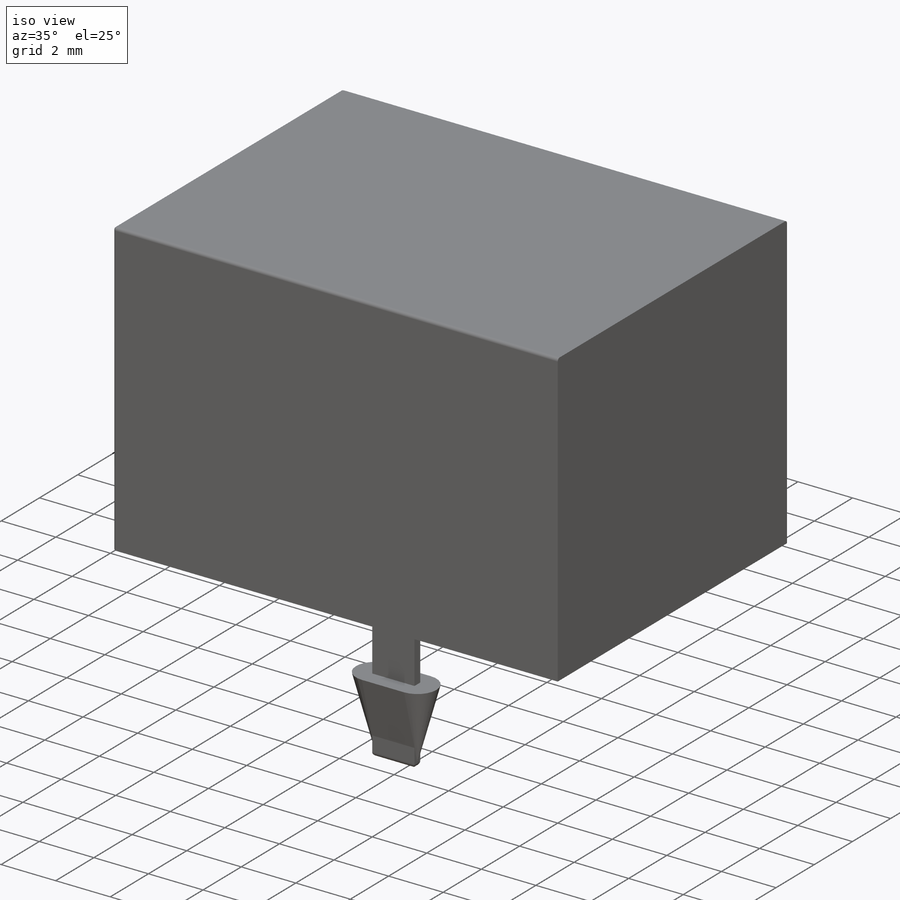
[diagram: iso view]
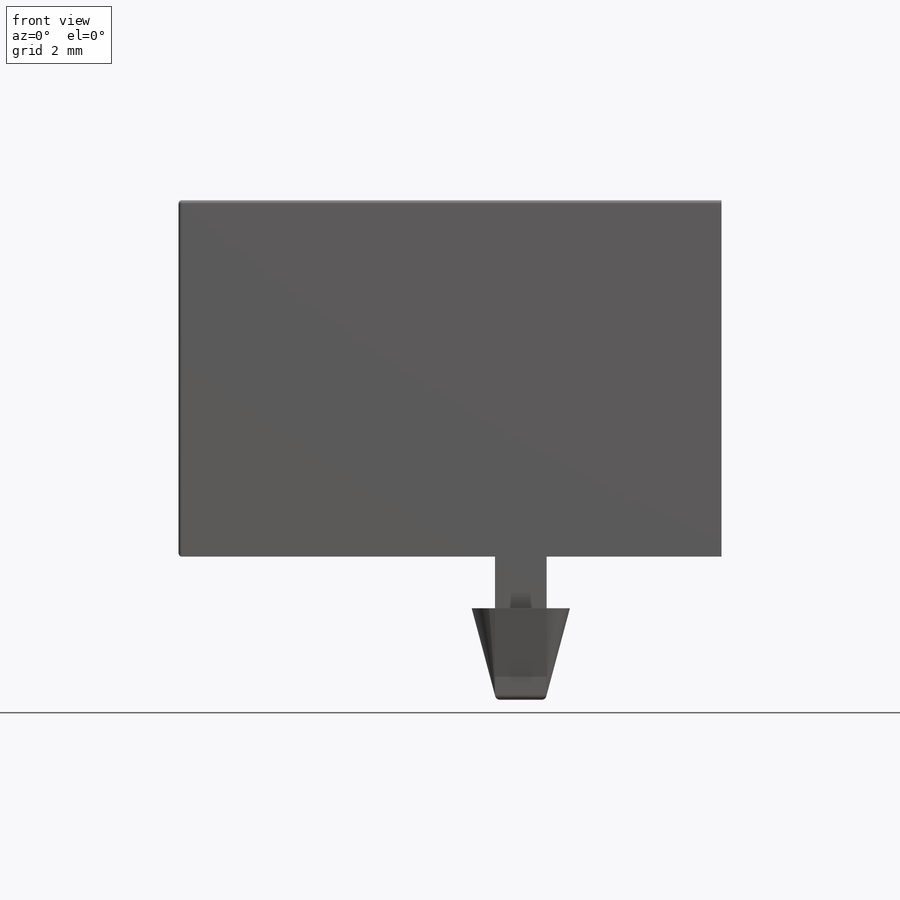
[diagram: front view]
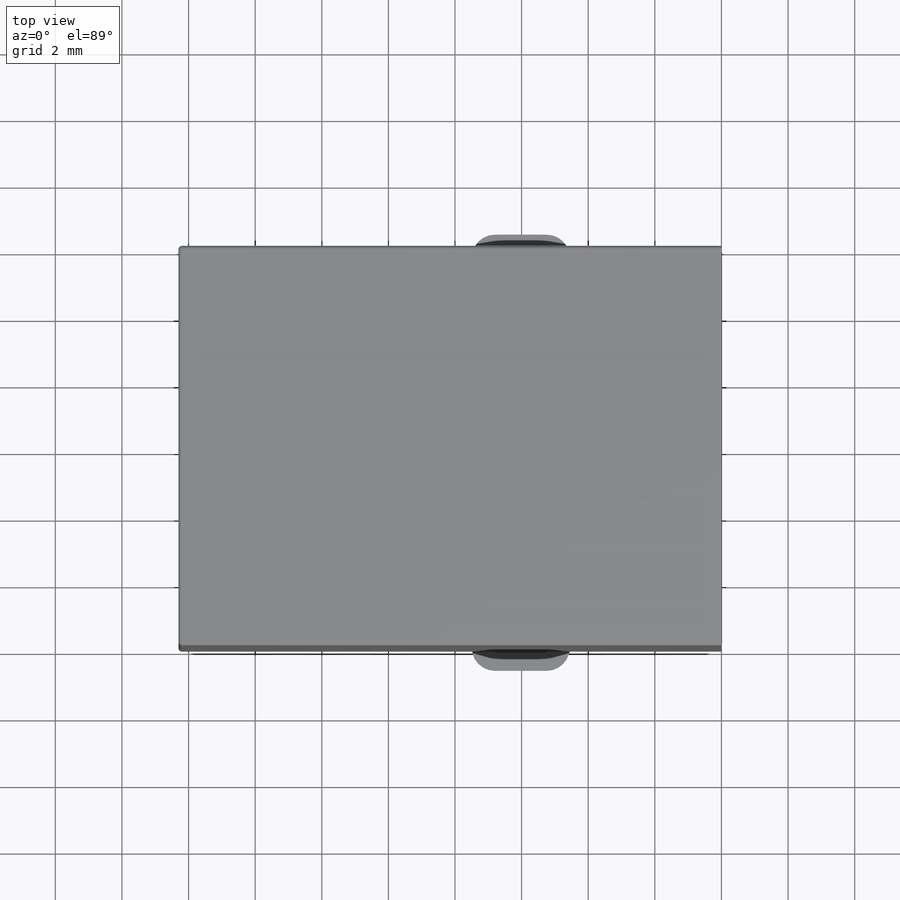
[diagram: top view]
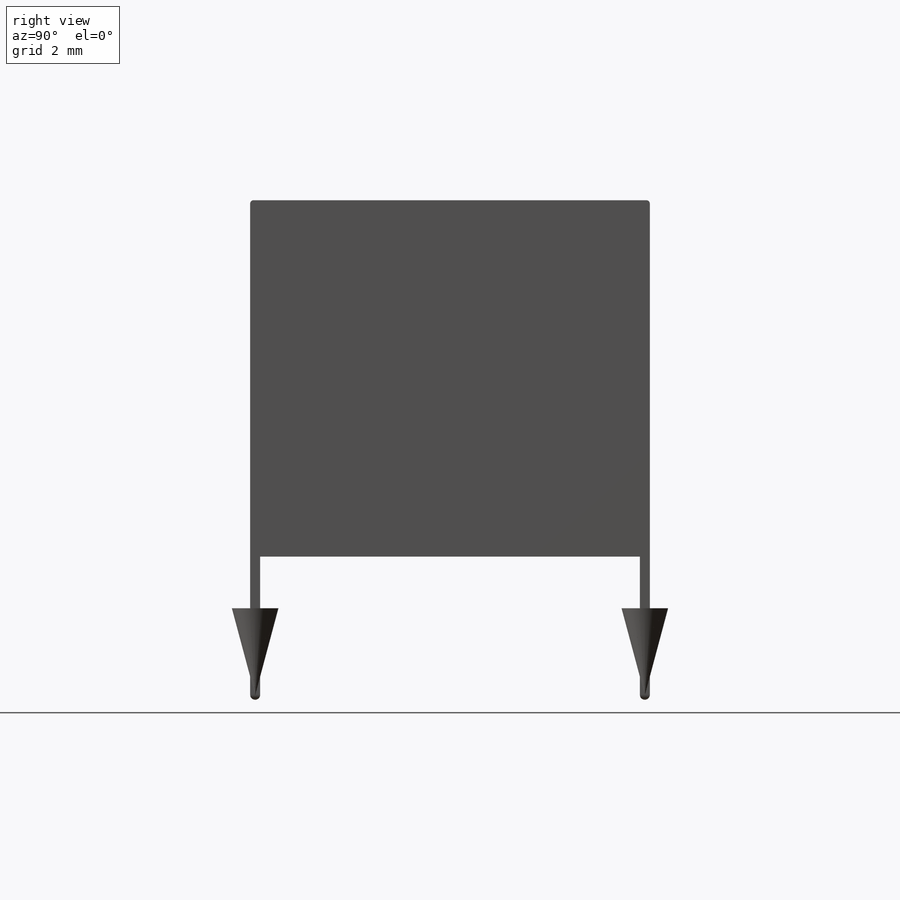
[diagram: right view]
SOLIDWORKS PART (.sldprt)
format: sldprt  version: not decoded by parser v0  size: 329,728 bytes
history: native  units: mm
features: sketch x5, plane x4, extrude x4, fillet x2, material x1, cut_extrude x1, chamfer x1 (+10 scaffold rows collapsed)
feature tree (28):
  scaffold x10  (default folders/planes/origin — collapsed)
  material  "Material <not specified>"
  plane  "Plan de face"
  plane  "Plan de dessus"
  plane  "Plan de droite"
  sketch  "Esquisse1"  dims[D1=12.0mm D2=16.3mm]
  extrude  "Boss.-Extru.1"  Depth=10.7mm
  sketch  "Esquisse2"  dims[c1.D1=1.8mm c1.D2=5.2mm c1.D3=~1.24624mm c2.D3=45.0deg c2.D4=~0.881225mm c3.D4=45.0deg c3.D5=8.4mm c3.D6=7.6mm c3.D7=1.45mm c3.D8=8.4mm]
  cut_extrude  "Enlèv. mat.-Extru.1"  Depth=9mm
  sketch  "Esquisse4"  dims[D1=5.6mm D2=3.1mm D3=2.2mm D4=5.6mm]
  extrude  "Boss.-Extru.2"  Depth=8.8mm
  chamfer  "Chanfrein1"  Distance=0.2mm Angle=45deg
  fillet  "Congé1"  Radius=0.1mm
  sketch  "Esquisse5"  dims[D1=0.3mm D2=1.55mm D3=9.4mm]
  extrude  "Boss.-Extru.3"  Depth=4.3mm
  plane  "Plan1"  Offset=1.55mm
  sketch  "Esquisse6"  dims[D1=0.7mm D2=0.7mm]
  extrude  "Boss.-Extru.4"  Depth=2.6mm
  fillet  "Congé3"  Radius=0.15mm
decode coverage: 13 of 13 modeling features carry decoded parameters
note: ~ marks probable driven/reference dimensions
note: suppression state not decoded; provenance and decode notes live in map.json
